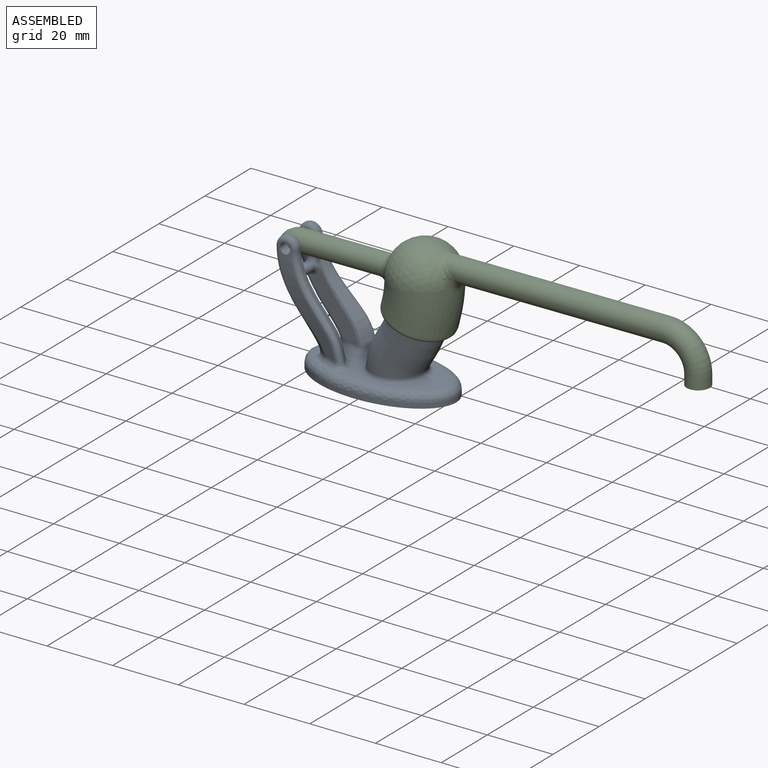
[diagram: assembled view]
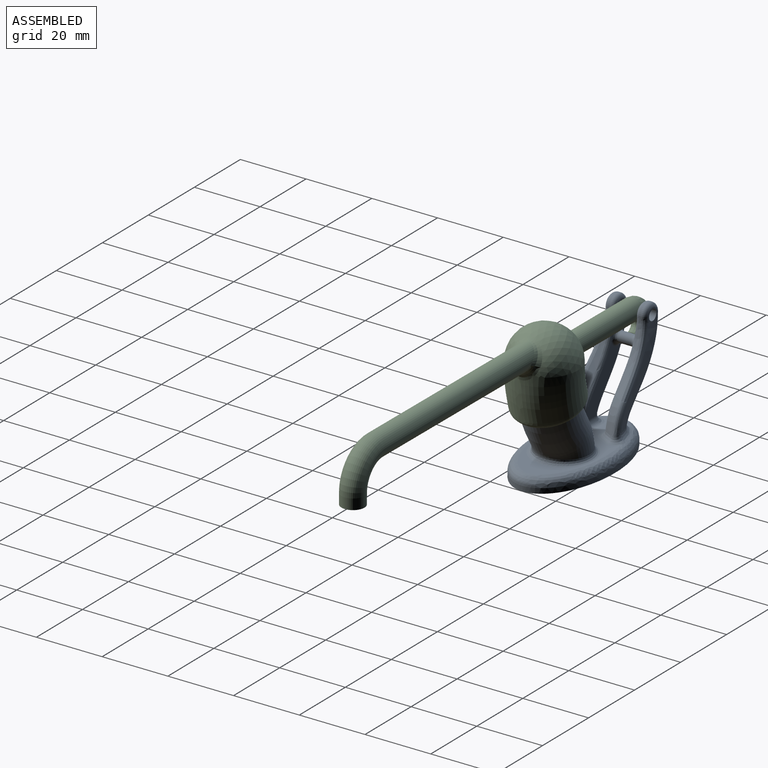
[diagram: assembled view, second angle]
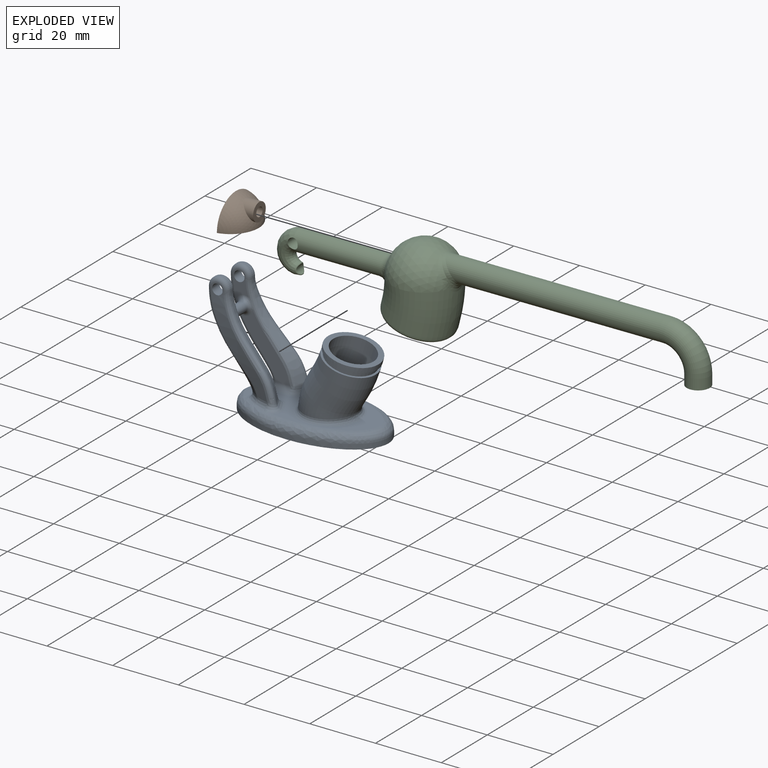
[diagram: exploded view]
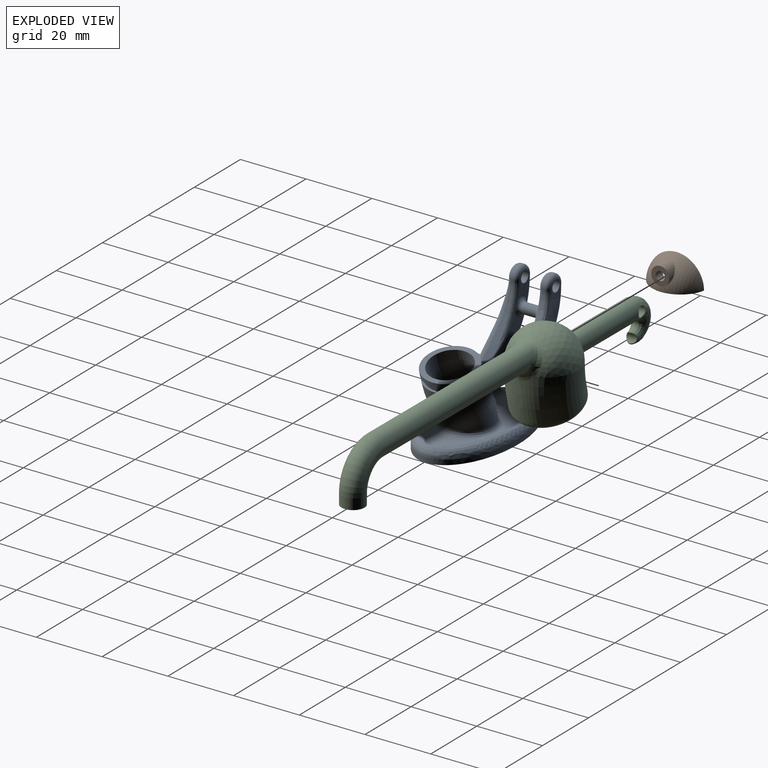
[diagram: exploded view, second angle]
ASSEMBLY  parts=3 mates=5
PART A: 80 faces, bbox 51.2x25.5x42.4 mm
  f0: cylinder r=4.85mm len=9.7mm, axis (0,0,-1), area 111.6mm2, adj f11,f79
  f1: plane 8.29x4.73mm, normal (0,1,0), area 18.2mm2, adj f21,f25,f26,f27,f76
  f2: plane 8.29x4.73mm, normal (0,-1,0), area 18.2mm2, adj f42,f46,f47,f48,f73
  f3: bspline ~27.94x23.06mm, area 114.3mm2, adj f20,f21,f22,f24,f28
  f4: torus R=38.1mm, axis (0,1,0), area 488mm2, adj f7,f9
  f5: extruded ~44.45x25.4mm, area 176.2mm2, adj f58,f59,f60,f61,f62,f63,f64,f65
  f6: plane 39.38x20.33mm, normal (0,0,1), area 216.7mm2, adj f30,f32,f33,f34,f35,f51,f53,f54
  f7: torus R=13.97mm, axis (0,-1,0), area 310.2mm2, adj f4,f57
  f8: cylinder r=7.24mm len=14.48mm, axis (0.29,0,0.96), area 69.3mm2, adj f9,f10
  f9: plane 15.88x15.2mm, normal (0.29,0,0.96), area 30.2mm2, adj f4,f8
  f10: plane 15.88x15.2mm, normal (-0.29,0,-0.96), area 30.2mm2, adj f8,f15
  f11: plane 12.57x12.57mm, normal (0,0,1), area 50.3mm2, adj f0,f12
  f12: torus R=13.97mm, axis (0,-1,0), area 317.8mm2, adj f11,f13
  f13: torus R=38.1mm, axis (0,1,0), area 499.1mm2, adj f12,f14
  f14: plane 15.75x15.28mm, normal (0.24,0,0.97), area 70.6mm2, adj f13,f15
  f15: torus R=38.1mm, axis (0,1,0), area 60.3mm2, adj f10,f14
  f16: plane 17.51x14.97mm, normal (0,1,0), area 82.8mm2, adj f25,f27,f35,f77
  f17: bspline ~27.94x16.71mm, area 57.9mm2, adj f19,f22,f27,f32
  f18: bspline ~27.94x16.39mm, area 41.9mm2, adj f19,f24,f25,f31
  f19: cylinder r=3.17mm len=6.35mm, axis (0,1,0), area 6.3mm2, adj f17,f18,f23,f26
  f20: plane 3.81x1.91mm, normal (0,-1,0), area 1.7mm2, adj f3,f21,f23
  f21: cylinder r=1.59mm len=3.18mm, axis (0,1,0), area 31.7mm2, adj f1,f3,f20
  f22: bspline ~27.88x17.74mm, area 79.4mm2, adj f3,f17,f23,f30
  f23: torus R=1.91mm, axis (0,1,0), area 17mm2, adj f19,f20,f22,f24
  f24: bspline ~27.35x16.33mm, area 34.4mm2, adj f3,f18,f23,f29
  f25: bspline ~37.77x14.42mm, area 79.7mm2, adj f1,f16,f18,f26,f33,f75
  f26: torus R=1.91mm, axis (0,1,0), area 17mm2, adj f1,f19,f25,f27
  f27: bspline ~35.8x14.94mm, area 47.9mm2, adj f1,f16,f17,f26,f34,f78
  f28: bspline ~6.71x3.66mm, area 9.6mm2, adj f3,f29,f30,f64
  f29: bspline ~2.76x2.42mm, area 2mm2, adj f24,f28,f31,f66
  f30: bspline ~5.22x4.85mm, area 12.3mm2, adj f6,f22,f28,f32,f62
  f31: bspline ~5.65x5.05mm, area 7.3mm2, adj f18,f29,f33,f68
  f32: bspline ~6.9x4.85mm, area 7.6mm2, adj f6,f17,f30,f34
  f33: bspline ~5.8x4.11mm, area 15.9mm2, adj f6,f25,f31,f35,f69
  f34: bspline ~3.89x2.85mm, area 6.3mm2, adj f6,f27,f32,f35
  f35: cylinder r=1.91mm len=4.41mm, axis (-1,0,0), area 13.2mm2, adj f6,f16,f33,f34
  f36: plane 17.51x14.97mm, normal (0,-1,0), area 82.8mm2, adj f46,f48,f56,f72
  f37: bspline ~27.94x16.71mm, area 57.9mm2, adj f41,f43,f48,f53
  f38: bspline ~27.94x23.06mm, area 114.3mm2, adj f40,f42,f43,f45,f49
  f39: bspline ~27.94x16.39mm, area 41.9mm2, adj f41,f45,f46,f52
  f40: plane 3.81x1.91mm, normal (0,1,0), area 1.7mm2, adj f38,f42,f44
  f41: cylinder r=3.17mm len=6.35mm, axis (0,-1,0), area 6.3mm2, adj f37,f39,f44,f47
  f42: cylinder r=1.59mm len=3.18mm, axis (0,-1,0), area 31.7mm2, adj f2,f38,f40
  f43: bspline ~27.88x17.74mm, area 79.4mm2, adj f37,f38,f44,f51
  f44: torus R=1.91mm, axis (0,-1,0), area 17mm2, adj f40,f41,f43,f45
  f45: bspline ~27.35x16.33mm, area 34.4mm2, adj f38,f39,f44,f50
  f46: bspline ~37.77x14.42mm, area 79.7mm2, adj f2,f36,f39,f47,f54,f74
  f47: torus R=1.91mm, axis (0,-1,0), area 17mm2, adj f2,f41,f46,f48
  f48: bspline ~35.8x14.94mm, area 47.9mm2, adj f2,f36,f37,f47,f55,f71
  f49: bspline ~6.71x3.66mm, area 9.6mm2, adj f38,f50,f51,f59
  f50: bspline ~2.84x2.6mm, area 2mm2, adj f45,f49,f52,f61
  f51: bspline ~5.22x4.33mm, area 12.3mm2, adj f6,f43,f49,f53,f58
  f52: bspline ~5.65x5.05mm, area 7.3mm2, adj f39,f50,f54,f63
  f53: bspline ~6.9x4.85mm, area 7.6mm2, adj f6,f37,f51,f55
  f54: bspline ~5.8x4.12mm, area 15.9mm2, adj f6,f46,f52,f56,f65
  f55: bspline ~3.89x2.85mm, area 6.3mm2, adj f6,f48,f53,f56
  f56: cylinder r=1.91mm len=4.41mm, axis (-1,0,0), area 13.2mm2, adj f6,f36,f54,f55
  f57: bspline ~18.55x18.31mm, area 109mm2, adj f6,f7
  f58: bspline ~4.08x2.76mm, area 9.8mm2, adj f5,f51,f59,f60
  f59: bspline ~5.54x3.27mm, area 13.1mm2, adj f5,f49,f58,f61
  f60: bspline ~29.25x25.4mm, area 266.9mm2, adj f5,f6,f58,f62
  f61: bspline ~2.43x2.3mm, area 3.2mm2, adj f5,f50,f59,f63
  f62: bspline ~4.19x2.76mm, area 9.8mm2, adj f5,f30,f60,f64
  f63: bspline ~4.91x4.08mm, area 9.2mm2, adj f5,f52,f61,f65
  f64: bspline ~5.65x3.31mm, area 13.1mm2, adj f5,f28,f62,f66
  f65: bspline ~4.45x4.36mm, area 10.6mm2, adj f5,f54,f63,f67
  f66: bspline ~2.43x2.34mm, area 3.2mm2, adj f5,f29,f64,f68
  f67: bspline ~13.21x5.12mm, area 49.1mm2, adj f5,f6,f65,f69
  f68: bspline ~4.23x3.68mm, area 9.2mm2, adj f5,f31,f66,f69
  f69: bspline ~4.36x4.22mm, area 10.6mm2, adj f5,f33,f67,f68
  f70: cylinder r=1.59mm len=3.81mm, axis (0,1,0), area 38mm2, adj f71,f72,f73,f74,f75,f76,f77,f78
  f71: bspline ~4.07x2.27mm, area 4.9mm2, adj f48,f70,f72,f73
  f72: torus R=2.86mm, axis (0,-1,0), area 6.6mm2, adj f36,f70,f71,f74
  f73: torus R=2.86mm, axis (0,-1,0), area 6.4mm2, adj f2,f70,f71,f74
  f74: bspline ~4.51x2.3mm, area 5.5mm2, adj f46,f70,f72,f73
  f75: bspline ~4.51x2.3mm, area 5.5mm2, adj f25,f70,f76,f77
  f76: torus R=2.86mm, axis (0,1,0), area 6.4mm2, adj f1,f70,f75,f78
  f77: torus R=2.86mm, axis (0,1,0), area 6.6mm2, adj f16,f70,f75,f78
  f78: bspline ~4.07x2.27mm, area 4.9mm2, adj f27,f70,f76,f77
  f79: plane 44.45x25.4mm, normal (0,0,-1), area 812.8mm2, adj f0,f5
PART B: 7 faces, bbox 16.7x8.4x8.4 mm
  f0: sphere r=8.51mm, area 155.3mm2, adj f1,f4,f6
  f1: plane 16.72x6.92mm, normal (0,0,-1), area 33.4mm2, adj f0,f2,f6
  f2: sphere r=6.92mm, area 107.6mm2, adj f1,f3,f6
  f3: cylinder r=1.4mm len=5mm, axis (0,-1,0), area 32.3mm2, adj f2,f5
  f4: cylinder r=2.75mm len=5.5mm, axis (0,-1,0), area 36.8mm2, adj f0,f5
  f5: plane 5.5x5.5mm, normal (0,-1,0), area 17.6mm2, adj f3,f4
  f6: plane 16.72x8.36mm, normal (0,1,0), area 38.5mm2, adj f0,f1,f2
PART C: 24 faces, bbox 132.2x20.2x25.8 mm
  f0: sphere r=10.1mm, area 525.8mm2, adj f3,f16,f18
  f1: torus R=38.1mm, axis (0,1,0), area 675.5mm2, adj f2,f4
  f2: plane 17.66x16.71mm, normal (-0.33,0,-0.95), area 17.4mm2, adj f1,f23
  f3: torus R=38.1mm, axis (0,1,0), area 668.3mm2, adj f0,f17,f19,f23
  f4: sphere r=8.51mm, area 425.2mm2, adj f1,f22
  f5: cylinder r=3.17mm len=26.83mm, axis (-1,0,0), area 516.9mm2, adj f6,f16,f17,f20
  f6: bspline ~12.82x7.16mm, area 188mm2, adj f5,f8,f20
  f7: cylinder r=1.59mm len=3.05mm, axis (0,-1,0), area 6.3mm2, adj f8
  f8: bspline ~3.55x3.26mm, area 4.9mm2, adj f6,f7
  f9: cylinder r=3.49mm len=66.54mm, axis (1,0,0), area 1396mm2, adj f14,f18,f19
  f10: cylinder r=2mm len=64.45mm, axis (1,0,0), area 809.9mm2, adj f11,f21
  f11: torus R=9.53mm, axis (0,1,0), area 188mm2, adj f10,f12
  f12: cylinder r=2mm len=4mm, axis (0,0,-1), area 39.9mm2, adj f11,f13
  f13: plane 6.99x6.99mm, normal (0,0,-1), area 25.8mm2, adj f12,f15
  f14: torus R=9.53mm, axis (0,1,0), area 328.3mm2, adj f9,f15
  f15: cylinder r=3.49mm len=6.99mm, axis (0,0,-1), area 69.7mm2, adj f13,f14
  f16: torus R=5.71mm, axis (1,0,0), area 32.2mm2, adj f0,f5,f17
  f17: bspline ~9.13x7.52mm, area 46.8mm2, adj f3,f5,f16
  f18: bspline ~9.63x8.37mm, area 50.1mm2, adj f0,f9,f19
  f19: bspline ~7.97x3.99mm, area 21.6mm2, adj f3,f9,f18
  f20: cylinder r=1.59mm len=6.35mm, axis (0,-1,0), area 57mm2, adj f5,f6
  f21: plane 5.5x5.5mm, normal (-1,0,0), area 11.2mm2, adj f10,f22
  f22: cylinder r=2.75mm len=5.5mm, axis (-1,0,0), area 44.4mm2, adj f4,f21
  f23: bspline ~20.22x19.49mm, area 120.5mm2, adj f2,f3
PLACE A t=(1.55,12.47,3.53)mm fixed
PLACE B rot(axis=(0,0,1),90deg) t=(12.66,12.51,36.8)mm
PLACE C rot(axis=(0,-1,0),0.4deg) t=(-23.85,12.51,36.55)mm
MATE cylindrical C.f20 <-> A.f4  axis (0,-1,0) through (-23.85,9.29,36.55)mm
MATE cylindrical B.f3 <-> C.f22  axis (1,0,0.01) through (21.34,12.51,41.31)mm
MATE ball C.f1 <-> B.f1  axis (-0.01,0,1) through (14.25,12.51,36.81)mm
MATE parallel C.f1 <-> B.f1  axis (0.01,0,-1) through (14.25,12.51,36.81)mm
MATE planar C.f20 <-> A.f4  axis (0,-1,0) through (-23.85,9.29,36.55)mm
